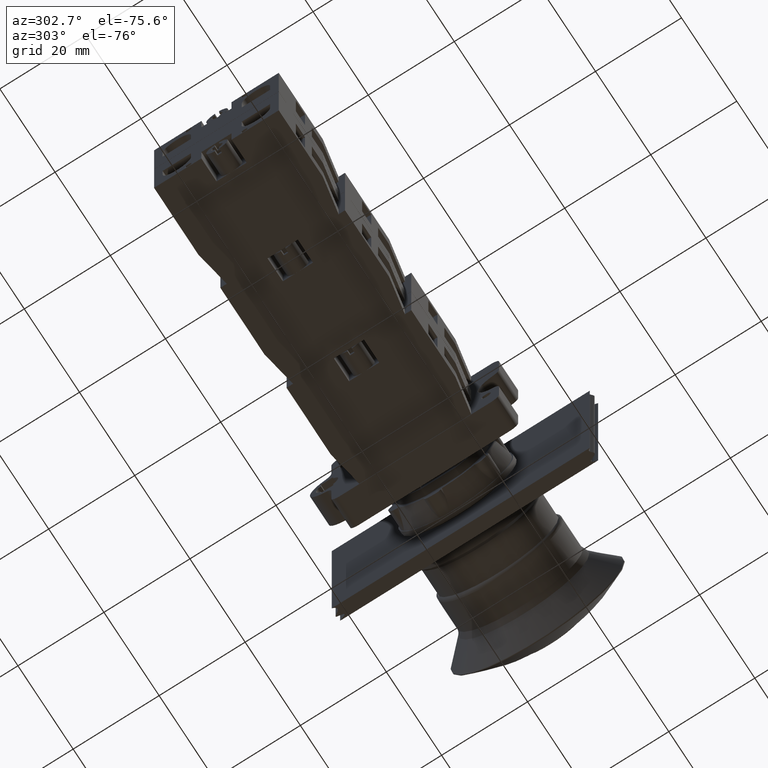
[diagram: clean part render]
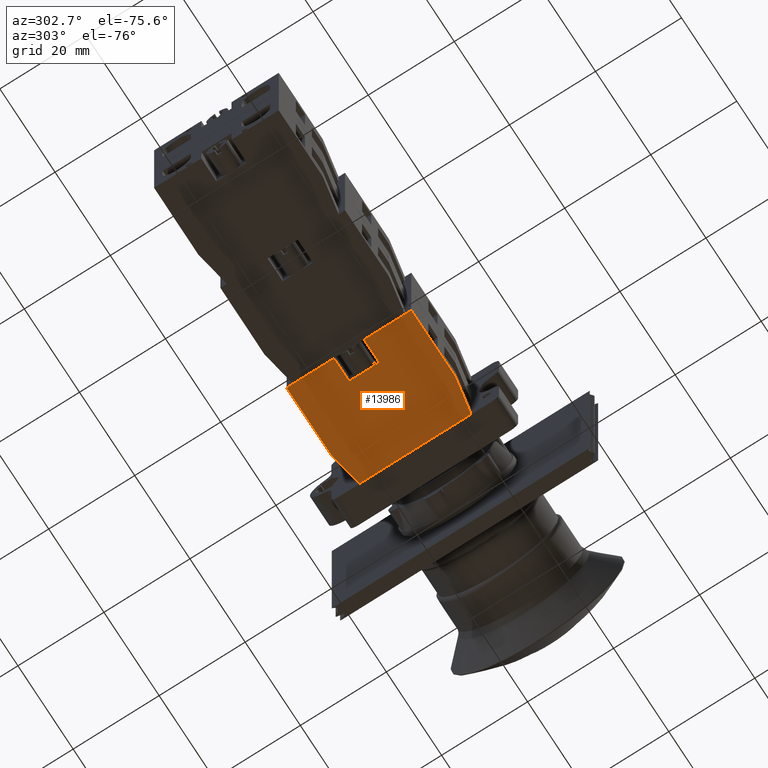
[diagram: same view with one face highlighted and labeled with its STEP entity id]
A machine part, auxiliary view. The second image highlights one B-rep face of the part: STEP entity #13986.
In plain terms, the highlighted planar face has unit normal (0, 0, -1).
Its self-contained STEP definition (entity closure, byte-faithful):
#12289=CARTESIAN_POINT('',(-44.936741828918457,7.797073323279626,14.699999999999999));
#12290=VERTEX_POINT('',#12289);
#12297=CARTESIAN_POINT('',(-44.936741828918471,23.797073323279623,14.699999999999999));
#12298=VERTEX_POINT('',#12297);
#12299=CARTESIAN_POINT('',(-44.936741828918457,7.797073323279626,14.699999999999999));
#12300=DIRECTION('',(0.0,1.0,0.0));
#12301=VECTOR('',#12300,15.999999999999996);
#12302=LINE('',#12299,#12301);
#12303=EDGE_CURVE('',#12290,#12298,#12302,.T.);
#12370=CARTESIAN_POINT('',(-43.436741828918457,-0.202926676720380,14.699999999999999));
#12371=VERTEX_POINT('',#12370);
#12378=CARTESIAN_POINT('',(-43.436741828918457,-0.202926676720380,14.699999999999999));
#12379=DIRECTION('',(-0.184288535050185,0.982872186934322,0.0));
#12380=VECTOR('',#12379,8.139410298049860);
#12381=LINE('',#12378,#12380);
#12382=EDGE_CURVE('',#12371,#12290,#12381,.T.);
#12521=CARTESIAN_POINT('',(-17.436741828918457,-0.202926676720377,14.699999999999999));
#12522=VERTEX_POINT('',#12521);
#12529=CARTESIAN_POINT('',(-17.436741828918457,-0.202926676720377,14.699999999999999));
#12530=DIRECTION('',(-1.0,0.0,0.0));
#12531=VECTOR('',#12530,26.0);
#12532=LINE('',#12529,#12531);
#12533=EDGE_CURVE('',#12522,#12371,#12532,.T.);
#12614=CARTESIAN_POINT('',(-15.936741828918466,7.797073323279626,14.699999999999999));
#12615=VERTEX_POINT('',#12614);
#12622=CARTESIAN_POINT('',(-15.936741828918466,7.797073323279626,14.699999999999999));
#12623=DIRECTION('',(-0.184288535050184,-0.982872186934322,0.0));
#12624=VECTOR('',#12623,8.139410298049855);
#12625=LINE('',#12622,#12624);
#12626=EDGE_CURVE('',#12615,#12522,#12625,.T.);
#13721=CARTESIAN_POINT('',(-26.936741828918468,18.297073323279626,14.699999999999999));
#13722=VERTEX_POINT('',#13721);
#13731=CARTESIAN_POINT('',(-26.936741828918468,23.797073323279626,14.699999999999999));
#13732=VERTEX_POINT('',#13731);
#13733=CARTESIAN_POINT('',(-26.936741828918468,23.797073323279626,14.699999999999999));
#13734=DIRECTION('',(0.0,-1.0,0.0));
#13735=VECTOR('',#13734,5.500000000000000);
#13736=LINE('',#13733,#13735);
#13737=EDGE_CURVE('',#13732,#13722,#13736,.T.);
#13792=CARTESIAN_POINT('',(-33.936741828918464,18.297073323279619,14.699999999999999));
#13793=VERTEX_POINT('',#13792);
#13801=CARTESIAN_POINT('',(-33.936741828918464,23.797073323279623,14.699999999999999));
#13802=VERTEX_POINT('',#13801);
#13809=CARTESIAN_POINT('',(-33.936741828918464,18.297073323279619,14.699999999999999));
#13810=DIRECTION('',(0.0,1.0,0.0));
#13811=VECTOR('',#13810,5.500000000000004);
#13812=LINE('',#13809,#13811);
#13813=EDGE_CURVE('',#13793,#13802,#13812,.T.);
#13826=CARTESIAN_POINT('',(-26.936741828918468,18.297073323279626,14.699999999999999));
#13827=DIRECTION('',(-1.0,0.0,0.0));
#13828=VECTOR('',#13827,6.999999999999996);
#13829=LINE('',#13826,#13828);
#13830=EDGE_CURVE('',#13722,#13793,#13829,.T.);
#13846=CARTESIAN_POINT('',(-15.936741828918466,23.797073323279626,14.699999999999999));
#13847=VERTEX_POINT('',#13846);
#13848=CARTESIAN_POINT('',(-26.936741828918468,23.797073323279626,14.699999999999999));
#13849=DIRECTION('',(1.0,0.0,0.0));
#13850=VECTOR('',#13849,11.000000000000002);
#13851=LINE('',#13848,#13850);
#13852=EDGE_CURVE('',#13732,#13847,#13851,.T.);
#13869=CARTESIAN_POINT('',(-44.936741828918471,23.797073323279623,14.699999999999999));
#13870=DIRECTION('',(1.0,0.0,0.0));
#13871=VECTOR('',#13870,11.000000000000007);
#13872=LINE('',#13869,#13871);
#13873=EDGE_CURVE('',#12298,#13802,#13872,.T.);
#13917=CARTESIAN_POINT('',(-15.936741828918466,23.797073323279626,14.699999999999999));
#13918=DIRECTION('',(0.0,-1.0,0.0));
#13919=VECTOR('',#13918,16.0);
#13920=LINE('',#13917,#13919);
#13921=EDGE_CURVE('',#13847,#12615,#13920,.T.);
#13969=CARTESIAN_POINT('',(-30.436741828918457,12.124046801833057,14.699999999999999));
#13970=DIRECTION('',(0.0,0.0,1.0));
#13971=DIRECTION('',(1.0,0.0,0.0));
#13972=AXIS2_PLACEMENT_3D('',#13969,#13970,#13971);
#13973=PLANE('',#13972);
#13974=ORIENTED_EDGE('',*,*,#13813,.T.);
#13975=ORIENTED_EDGE('',*,*,#13873,.F.);
#13976=ORIENTED_EDGE('',*,*,#12303,.F.);
#13977=ORIENTED_EDGE('',*,*,#12382,.F.);
#13978=ORIENTED_EDGE('',*,*,#12533,.F.);
#13979=ORIENTED_EDGE('',*,*,#12626,.F.);
#13980=ORIENTED_EDGE('',*,*,#13921,.F.);
#13981=ORIENTED_EDGE('',*,*,#13852,.F.);
#13982=ORIENTED_EDGE('',*,*,#13737,.T.);
#13983=ORIENTED_EDGE('',*,*,#13830,.T.);
#13984=EDGE_LOOP('',(#13974,#13975,#13976,#13977,#13978,#13979,#13980,#13981,#13982,#13983));
#13985=FACE_OUTER_BOUND('',#13984,.T.);
#13986=ADVANCED_FACE('',(#13985),#13973,.T.);